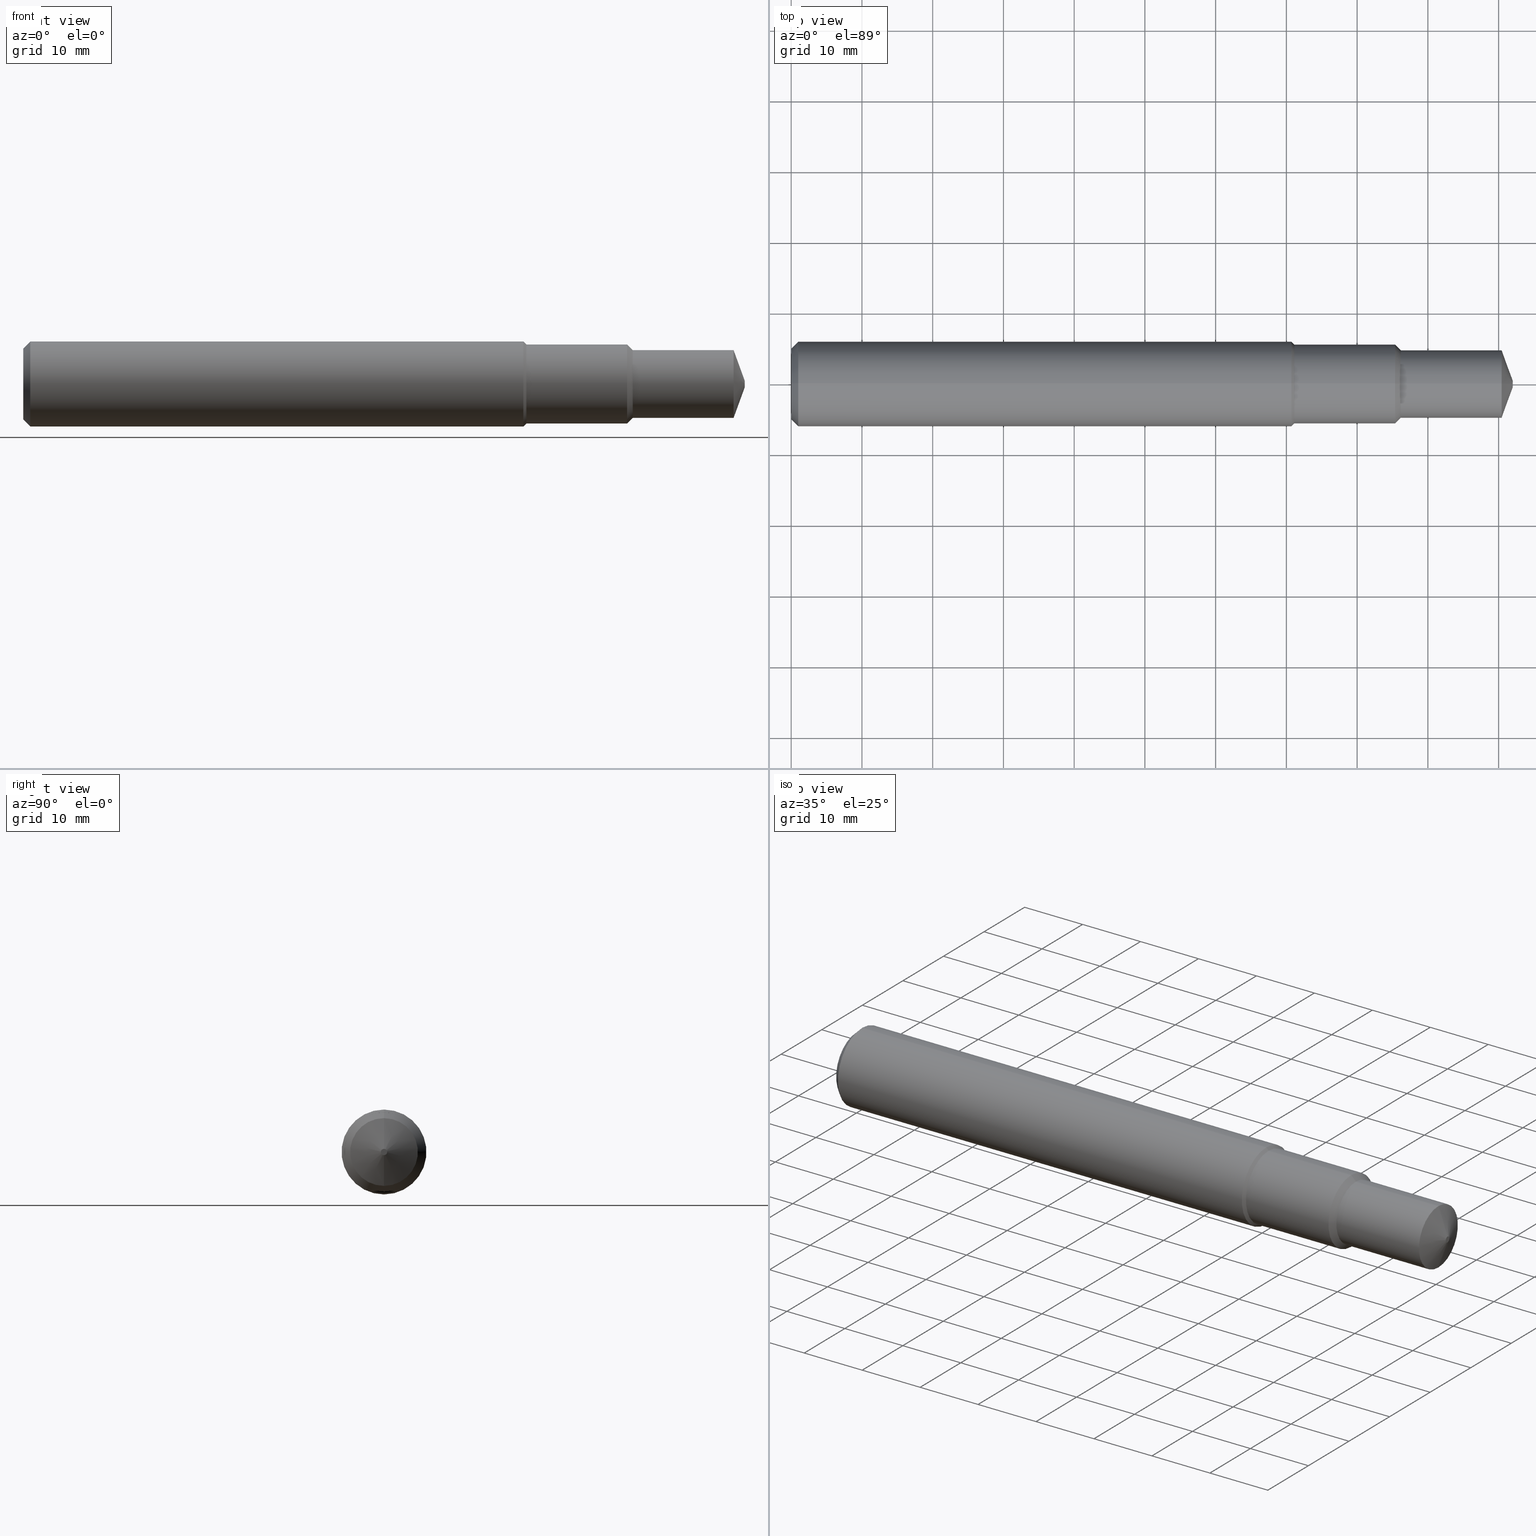
[diagram: canonical four-view strip — front | top / right | iso, engineering-drawing reading convention]
A machine part, canonical four-view strip (front | top / right | iso — engineering-drawing reading convention). The complete STEP part file that produces these views, byte-faithful:
ISO-10303-21;
HEADER;
FILE_DESCRIPTION (( 'STEP AP203' ),
    '1' );
FILE_NAME ('407040-RD-AS5202-04A.STEP',
    '2024-10-02T14:55:40',
    ( '' ),
    ( '' ),
    'SwSTEP 2.0',
    'SolidWorks 2024',
    '' );
FILE_SCHEMA (( 'CONFIG_CONTROL_DESIGN' ));
ENDSEC;

DATA;
#1 = PERSON_AND_ORGANIZATION ( #250, #100 ) ;
#2 = DIRECTION ( 'NONE',  ( 0.000000000000000000, 0.000000000000000000, -1.000000000000000000 ) ) ;
#3 = APPLICATION_PROTOCOL_DEFINITION ( 'international standard', 'config_control_design', 1994, #458 ) ;
#4 = ADVANCED_FACE ( 'NONE', ( #214 ), #179, .T. ) ;
#5 = CIRCLE ( 'NONE', #398, 0.2200000000000003897 ) ;
#6 = DIRECTION ( 'NONE',  ( -1.000000000000000000, 0.000000000000000000, 0.000000000000000000 ) ) ;
#7 = CARTESIAN_POINT ( 'NONE',  ( 4.016000000000000014, 0.000000000000000000, 0.01750000000000049780 ) ) ;
#8 = FACE_OUTER_BOUND ( 'NONE', #29, .T. ) ;
#9 = CARTESIAN_POINT ( 'NONE',  ( -0.03808593750000075634, 0.000000000000000000, -0.2200000000000003897 ) ) ;
#10 = AXIS2_PLACEMENT_3D ( 'NONE', #111, #257, #406 ) ;
#11 = AXIS2_PLACEMENT_3D ( 'NONE', #205, #328, #178 ) ;
#12 = LINE ( 'NONE', #420, #131 ) ;
#13 = DIRECTION ( 'NONE',  ( 0.000000000000000000, 0.000000000000000000, -1.000000000000000000 ) ) ;
#14 = APPROVAL ( #147, 'UNSPECIFIED' ) ;
#15 = EDGE_CURVE ( 'NONE', #319, #38, #19, .T. ) ;
#16 = CARTESIAN_POINT ( 'NONE',  ( 3.361261089940479785, 0.000000000000000000, 0.000000000000000000 ) ) ;
#17 = EDGE_CURVE ( 'NONE', #88, #38, #153, .T. ) ;
#18 = VERTEX_POINT ( 'NONE', #157 ) ;
#19 = CIRCLE ( 'NONE', #304, 0.2200000000000004174 ) ;
#20 = DIRECTION ( 'NONE',  ( 1.000000000000000000, -0.000000000000000000, -0.000000000000000000 ) ) ;
#21 = CARTESIAN_POINT ( 'NONE',  ( 3.392761089940480090, 0.000000000000000000, 0.1885000000000004172 ) ) ;
#22 = DIRECTION ( 'NONE',  ( 0.000000000000000000, 0.000000000000000000, -1.000000000000000000 ) ) ;
#23 = ORIENTED_EDGE ( 'NONE', *, *, #273, .F. ) ;
#24 = CIRCLE ( 'NONE', #268, 0.1968503937007874127 ) ;
#25 = AXIS2_PLACEMENT_3D ( 'NONE', #120, #39, #184 ) ;
#26 = AXIS2_PLACEMENT_3D ( 'NONE', #462, #130, #237 ) ;
#27 = FACE_OUTER_BOUND ( 'NONE', #478, .T. ) ;
#28 = PERSON_AND_ORGANIZATION_ROLE ( 'design_supplier' ) ;
#29 = EDGE_LOOP ( 'NONE', ( #238, #134, #437, #362 ) ) ;
#30 = FACE_OUTER_BOUND ( 'NONE', #364, .T. ) ;
#31 = ORIENTED_EDGE ( 'NONE', *, *, #292, .F. ) ;
#32 = EDGE_CURVE ( 'NONE', #438, #217, #83, .T. ) ;
#33 = CARTESIAN_POINT ( 'NONE',  ( -0.03808593750000075634, 0.000000000000000000, 0.000000000000000000 ) ) ;
#34 = ORIENTED_EDGE ( 'NONE', *, *, #52, .T. ) ;
#35 = CIRCLE ( 'NONE', #26, 0.1968503937007874127 ) ;
#36 =( LENGTH_UNIT ( ) NAMED_UNIT ( * ) SI_UNIT ( $, .METRE. ) );
#37 = APPROVAL_DATE_TIME ( #62, #317 ) ;
#38 = VERTEX_POINT ( 'NONE', #306 ) ;
#39 = DIRECTION ( 'NONE',  ( 1.000000000000000000, -0.000000000000000000, -0.000000000000000000 ) ) ;
#40 = ADVANCED_FACE ( 'NONE', ( #186 ), #229, .T. ) ;
#41 = DIRECTION ( 'NONE',  ( 0.000000000000000000, 0.000000000000000000, 1.000000000000000000 ) ) ;
#42 = PERSON_AND_ORGANIZATION ( #250, #100 ) ;
#43 = CIRCLE ( 'NONE', #196, 0.2362204724409452394 ) ;
#44 = CARTESIAN_POINT ( 'NONE',  ( 4.016000000000000014, 1.261386203121780101E-17, -0.01750000000000049780 ) ) ;
#45 = DIRECTION ( 'NONE',  ( 1.000000000000000000, -0.000000000000000000, -0.000000000000000000 ) ) ;
#46 = CARTESIAN_POINT ( 'NONE',  ( 2.800261089940479842, 0.000000000000000000, -0.2200000000000003897 ) ) ;
#47 = CARTESIAN_POINT ( 'NONE',  ( 2.800261089940479842, 0.000000000000000000, 0.2200000000000003897 ) ) ;
#48 = VECTOR ( 'NONE', #195, 39.37007874015748143 ) ;
#49 = CC_DESIGN_APPROVAL ( #182, ( #413 ) ) ;
#50 = CARTESIAN_POINT ( 'NONE',  ( -0.03808593750000075634, 0.000000000000000000, 0.000000000000000000 ) ) ;
#51 = EDGE_CURVE ( 'NONE', #386, #424, #416, .T. ) ;
#52 = EDGE_CURVE ( 'NONE', #217, #38, #110, .T. ) ;
#53 = DIRECTION ( 'NONE',  ( 0.7071067811865474617, 0.000000000000000000, -0.7071067811865474617 ) ) ;
#54 = EDGE_LOOP ( 'NONE', ( #403, #399, #311, #220 ) ) ;
#55 = DIRECTION ( 'NONE',  ( 1.000000000000000000, -0.000000000000000000, -0.000000000000000000 ) ) ;
#56 = ORIENTED_EDGE ( 'NONE', *, *, #475, .F. ) ;
#57 = LOCAL_TIME ( 7, 55, 40.00000000000000000, #365 ) ;
#58 = LINE ( 'NONE', #350, #463 ) ;
#59 = ORIENTED_EDGE ( 'NONE', *, *, #289, .T. ) ;
#60 = CARTESIAN_POINT ( 'NONE',  ( 4.016000000000000014, 0.000000000000000000, 0.000000000000000000 ) ) ;
#61 = DIRECTION ( 'NONE',  ( 0.000000000000000000, 0.000000000000000000, 1.000000000000000000 ) ) ;
#62 = DATE_AND_TIME ( #93, #57 ) ;
#63 = ORIENTED_EDGE ( 'NONE', *, *, #191, .T. ) ;
#64 = CLOSED_SHELL ( 'NONE', ( #222, #40, #445, #116, #258, #79, #359, #98, #4, #249, #378, #341, #189, #99, #360, #423 ) ) ;
#65 = MANIFOLD_SOLID_BREP ( 'Body', #64 ) ;
#66 = DIRECTION ( 'NONE',  ( 0.000000000000000000, 0.000000000000000000, -1.000000000000000000 ) ) ;
#67 = ORIENTED_EDGE ( 'NONE', *, *, #52, .F. ) ;
#68 =( CONVERSION_BASED_UNIT ( 'INCH', #101 ) LENGTH_UNIT ( ) NAMED_UNIT ( #396 ) );
#69 = ORIENTED_EDGE ( 'NONE', *, *, #152, .T. ) ;
#70 = ORIENTED_EDGE ( 'NONE', *, *, #327, .F. ) ;
#71 = AXIS2_PLACEMENT_3D ( 'NONE', #50, #199, #345 ) ;
#72 = MECHANICAL_CONTEXT ( 'NONE', #458, 'mechanical' ) ;
#73 =( GEOMETRIC_REPRESENTATION_CONTEXT ( 3 ) GLOBAL_UNCERTAINTY_ASSIGNED_CONTEXT ( ( #281 ) ) GLOBAL_UNIT_ASSIGNED_CONTEXT ( ( #68, #213, #104 ) ) REPRESENTATION_CONTEXT ( 'NONE', 'WORKASPACE' ) );
#74 = VERTEX_POINT ( 'NONE', #371 ) ;
#75 = CARTESIAN_POINT ( 'NONE',  ( 0.03937007874015747977, 2.892866454678787531E-17, 0.2362204724409449064 ) ) ;
#76 = DIRECTION ( 'NONE',  ( 1.000000000000000000, -0.000000000000000000, -0.000000000000000000 ) ) ;
#77 = VECTOR ( 'NONE', #246, 39.37007874015748143 ) ;
#78 = CARTESIAN_POINT ( 'NONE',  ( 3.361261089940479785, 0.000000000000000000, 0.000000000000000000 ) ) ;
#79 = ADVANCED_FACE ( 'NONE', ( #8 ), #150, .T. ) ;
#80 = CARTESIAN_POINT ( 'NONE',  ( 2.800261089940479842, 0.000000000000000000, 0.000000000000000000 ) ) ;
#81 = DIRECTION ( 'NONE',  ( 1.000000000000000000, -0.000000000000000000, -0.000000000000000000 ) ) ;
#82 = DIRECTION ( 'NONE',  ( 1.000000000000000000, -0.000000000000000000, -0.000000000000000000 ) ) ;
#83 = CIRCLE ( 'NONE', #202, 0.1885000000000004172 ) ;
#84 = LOCAL_TIME ( 7, 55, 40.00000000000000000, #112 ) ;
#85 = VECTOR ( 'NONE', #288, 39.37007874015748854 ) ;
#86 = EDGE_CURVE ( 'NONE', #212, #74, #337, .T. ) ;
#87 = CARTESIAN_POINT ( 'NONE',  ( 4.268512490100411279E-18, 0.000000000000000000, 0.000000000000000000 ) ) ;
#88 = VERTEX_POINT ( 'NONE', #46 ) ;
#89 = FACE_OUTER_BOUND ( 'NONE', #94, .T. ) ;
#90 = CARTESIAN_POINT ( 'NONE',  ( 0.03937007874015747977, 2.892866454678788147E-17, 0.2362204724409449064 ) ) ;
#91 = AXIS2_PLACEMENT_3D ( 'NONE', #60, #92, #61 ) ;
#92 = DIRECTION ( 'NONE',  ( -1.000000000000000000, 0.000000000000000000, 0.000000000000000000 ) ) ;
#93 = CALENDAR_DATE ( 2024, 2, 10 ) ;
#94 = EDGE_LOOP ( 'NONE', ( #351, #203, #315, #126 ) ) ;
#95 = FACE_OUTER_BOUND ( 'NONE', #367, .T. ) ;
#96 = CC_DESIGN_PERSON_AND_ORGANIZATION_ASSIGNMENT ( #379, #194, ( #271 ) ) ;
#97 = EDGE_LOOP ( 'NONE', ( #67, #235, #421, #348 ) ) ;
#98 = ADVANCED_FACE ( 'NONE', ( #115 ), #148, .T. ) ;
#99 = ADVANCED_FACE ( 'NONE', ( #444 ), #124, .T. ) ;
#100 = ORGANIZATION ( 'UNSPECIFIED', 'UNSPECIFIED', '' ) ;
#101 = LENGTH_MEASURE_WITH_UNIT ( LENGTH_MEASURE( 0.02539999999999999897 ), #36 );
#102 = CALENDAR_DATE ( 2024, 2, 10 ) ;
#103 = ORIENTED_EDGE ( 'NONE', *, *, #425, .T. ) ;
#104 =( NAMED_UNIT ( * ) SI_UNIT ( $, .STERADIAN. ) SOLID_ANGLE_UNIT ( ) );
#105 = DATE_TIME_ROLE ( 'classification_date' ) ;
#106 = ORIENTED_EDGE ( 'NONE', *, *, #51, .F. ) ;
#107 = ORIENTED_EDGE ( 'NONE', *, *, #191, .F. ) ;
#108 = CONICAL_SURFACE ( 'NONE', #231, 0.1885000000000004172, 0.7853981633974407295 ) ;
#109 = PERSON_AND_ORGANIZATION_ROLE ( 'creator' ) ;
#110 = LINE ( 'NONE', #336, #354 ) ;
#111 = CARTESIAN_POINT ( 'NONE',  ( -0.03808593750000075634, 0.000000000000000000, 0.000000000000000000 ) ) ;
#112 = COORDINATED_UNIVERSAL_TIME_OFFSET ( 8, 0, .BEHIND. ) ;
#113 = CC_DESIGN_DATE_AND_TIME_ASSIGNMENT ( #145, #105, ( #322 ) ) ;
#114 = EDGE_CURVE ( 'NONE', #18, #319, #343, .T. ) ;
#115 = FACE_OUTER_BOUND ( 'NONE', #334, .T. ) ;
#116 = ADVANCED_FACE ( 'NONE', ( #381 ), #297, .T. ) ;
#117 = DATE_AND_TIME ( #446, #464 ) ;
#118 = AXIS2_PLACEMENT_3D ( 'NONE', #314, #82, #121 ) ;
#119 = CARTESIAN_POINT ( 'NONE',  ( -0.03808593750000075634, 0.000000000000000000, 0.000000000000000000 ) ) ;
#120 = CARTESIAN_POINT ( 'NONE',  ( -0.03808593750000075634, 0.000000000000000000, 0.000000000000000000 ) ) ;
#121 = DIRECTION ( 'NONE',  ( 0.000000000000000000, 0.000000000000000000, -1.000000000000000000 ) ) ;
#122 = ORIENTED_EDGE ( 'NONE', *, *, #32, .T. ) ;
#123 = LINE ( 'NONE', #21, #457 ) ;
#124 = CONICAL_SURFACE ( 'NONE', #149, 0.2200000000000003897, 0.7853981633974524978 ) ;
#125 = CC_DESIGN_APPROVAL ( #317, ( #322 ) ) ;
#126 = ORIENTED_EDGE ( 'NONE', *, *, #15, .F. ) ;
#127 = PRODUCT_DEFINITION_SHAPE ( 'NONE', 'NONE',  #187 ) ;
#128 = CARTESIAN_POINT ( 'NONE',  ( 3.953761089940480034, 0.000000000000000000, 0.000000000000000000 ) ) ;
#129 = DIRECTION ( 'NONE',  ( 1.000000000000000000, -0.000000000000000000, -0.000000000000000000 ) ) ;
#130 = DIRECTION ( 'NONE',  ( 1.000000000000000000, -0.000000000000000000, -0.000000000000000000 ) ) ;
#131 = VECTOR ( 'NONE', #129, 39.37007874015748143 ) ;
#132 = APPROVAL_PERSON_ORGANIZATION ( #1, #14, #154 ) ;
#133 = CARTESIAN_POINT ( 'NONE',  ( 4.016000000000000014, 0.000000000000000000, 0.000000000000000000 ) ) ;
#134 = ORIENTED_EDGE ( 'NONE', *, *, #443, .T. ) ;
#135 = FACE_OUTER_BOUND ( 'NONE', #54, .T. ) ;
#136 = EDGE_LOOP ( 'NONE', ( #293, #326, #248, #63 ) ) ;
#137 = EDGE_CURVE ( 'NONE', #295, #278, #449, .T. ) ;
#138 = DIRECTION ( 'NONE',  ( 0.000000000000000000, 0.000000000000000000, 1.000000000000000000 ) ) ;
#139 = ORIENTED_EDGE ( 'NONE', *, *, #200, .F. ) ;
#140 = CIRCLE ( 'NONE', #418, 0.2200000000000003897 ) ;
#141 = AXIS2_PLACEMENT_3D ( 'NONE', #133, #431, #66 ) ;
#142 = PERSON_AND_ORGANIZATION_ROLE ( 'creator' ) ;
#143 = DIRECTION ( 'NONE',  ( 1.000000000000000000, 0.000000000000000000, -0.000000000000000000 ) ) ;
#144 = CARTESIAN_POINT ( 'NONE',  ( 0.03937007874015747977, 0.000000000000000000, 0.000000000000000000 ) ) ;
#145 = DATE_AND_TIME ( #102, #383 ) ;
#146 = ORIENTED_EDGE ( 'NONE', *, *, #310, .F. ) ;
#147 = APPROVAL_STATUS ( 'not_yet_approved' ) ;
#148 = PLANE ( 'NONE',  #218 ) ;
#149 = AXIS2_PLACEMENT_3D ( 'NONE', #227, #259, #447 ) ;
#150 = CYLINDRICAL_SURFACE ( 'NONE', #298, 0.1885000000000004727 ) ;
#151 = CC_DESIGN_DATE_AND_TIME_ASSIGNMENT ( #410, #224, ( #187 ) ) ;
#152 = EDGE_CURVE ( 'NONE', #167, #386, #473, .T. ) ;
#153 = LINE ( 'NONE', #9, #48 ) ;
#154 = APPROVAL_ROLE ( '' ) ;
#155 = DIRECTION ( 'NONE',  ( -0.3420201433256661039, 0.000000000000000000, 0.9396926207859094271 ) ) ;
#156 = AXIS2_PLACEMENT_3D ( 'NONE', #144, #173, #397 ) ;
#157 = CARTESIAN_POINT ( 'NONE',  ( 2.800261089940479842, 2.694222958124181567E-17, 0.2200000000000003897 ) ) ;
#158 = CARTESIAN_POINT ( 'NONE',  ( 3.392761089940480090, 0.000000000000000000, 0.000000000000000000 ) ) ;
#159 = CARTESIAN_POINT ( 'NONE',  ( 4.016000000000000014, 0.000000000000000000, 0.000000000000000000 ) ) ;
#160 = ORIENTED_EDGE ( 'NONE', *, *, #137, .F. ) ;
#161 = DIRECTION ( 'NONE',  ( 1.000000000000000000, -0.000000000000000000, -0.000000000000000000 ) ) ;
#162 = AXIS2_PLACEMENT_3D ( 'NONE', #16, #168, #347 ) ;
#163 = LOCAL_TIME ( 7, 55, 40.00000000000000000, #448 ) ;
#164 = ORIENTED_EDGE ( 'NONE', *, *, #165, .T. ) ;
#165 = EDGE_CURVE ( 'NONE', #88, #18, #140, .T. ) ;
#166 = DIRECTION ( 'NONE',  ( -0.7071067811865529018, 0.000000000000000000, 0.7071067811865421326 ) ) ;
#167 = VERTEX_POINT ( 'NONE', #44 ) ;
#168 = DIRECTION ( 'NONE',  ( 1.000000000000000000, -0.000000000000000000, -0.000000000000000000 ) ) ;
#169 = CARTESIAN_POINT ( 'NONE',  ( -0.03808593750000075634, 2.308459216392766469E-17, 0.1885000000000004727 ) ) ;
#170 = ORIENTED_EDGE ( 'NONE', *, *, #407, .T. ) ;
#171 = AXIS2_PLACEMENT_3D ( 'NONE', #261, #408, #264 ) ;
#172 = EDGE_CURVE ( 'NONE', #217, #468, #192, .T. ) ;
#173 = DIRECTION ( 'NONE',  ( 1.000000000000000000, -0.000000000000000000, -0.000000000000000000 ) ) ;
#174 = ORIENTED_EDGE ( 'NONE', *, *, #86, .T. ) ;
#175 = DIRECTION ( 'NONE',  ( 1.000000000000000000, -0.000000000000000000, -0.000000000000000000 ) ) ;
#176 = PERSON_AND_ORGANIZATION ( #250, #100 ) ;
#177 = VERTEX_POINT ( 'NONE', #380 ) ;
#178 = DIRECTION ( 'NONE',  ( 0.000000000000000000, 0.000000000000000000, -1.000000000000000000 ) ) ;
#179 = PLANE ( 'NONE',  #290 ) ;
#180 = CIRCLE ( 'NONE', #450, 0.2362204724409449064 ) ;
#181 = AXIS2_PLACEMENT_3D ( 'NONE', #33, #465, #242 ) ;
#182 = APPROVAL ( #260, 'UNSPECIFIED' ) ;
#183 = EDGE_LOOP ( 'NONE', ( #388, #34, #255, #209 ) ) ;
#184 = DIRECTION ( 'NONE',  ( 0.000000000000000000, 0.000000000000000000, -1.000000000000000000 ) ) ;
#185 = DIRECTION ( 'NONE',  ( 1.000000000000000000, 0.000000000000000000, 0.000000000000000000 ) ) ;
#186 = FACE_OUTER_BOUND ( 'NONE', #357, .T. ) ;
#187 = PRODUCT_DEFINITION ( 'UNKNOWN', '', #413, #287 ) ;
#188 = AXIS2_PLACEMENT_3D ( 'NONE', #427, #20, #390 ) ;
#189 = ADVANCED_FACE ( 'NONE', ( #89 ), #428, .T. ) ;
#190 = VECTOR ( 'NONE', #197, 39.37007874015748854 ) ;
#191 = EDGE_CURVE ( 'NONE', #424, #468, #344, .T. ) ;
#192 = LINE ( 'NONE', #193, #433 ) ;
#193 = CARTESIAN_POINT ( 'NONE',  ( -0.03808593750000075634, 0.000000000000000000, -0.1885000000000004727 ) ) ;
#194 = PERSON_AND_ORGANIZATION_ROLE ( 'design_owner' ) ;
#195 = DIRECTION ( 'NONE',  ( 1.000000000000000000, -0.000000000000000000, -0.000000000000000000 ) ) ;
#196 = AXIS2_PLACEMENT_3D ( 'NONE', #232, #453, #13 ) ;
#197 = DIRECTION ( 'NONE',  ( -0.7071067811865444641, 0.000000000000000000, 0.7071067811865503483 ) ) ;
#198 = FACE_OUTER_BOUND ( 'NONE', #283, .T. ) ;
#199 = DIRECTION ( 'NONE',  ( 1.000000000000000000, -0.000000000000000000, -0.000000000000000000 ) ) ;
#200 = EDGE_CURVE ( 'NONE', #177, #74, #12, .T. ) ;
#201 = DIRECTION ( 'NONE',  ( 1.000000000000000000, -0.000000000000000000, -0.000000000000000000 ) ) ;
#202 = AXIS2_PLACEMENT_3D ( 'NONE', #452, #81, #415 ) ;
#203 = ORIENTED_EDGE ( 'NONE', *, *, #409, .T. ) ;
#204 = CARTESIAN_POINT ( 'NONE',  ( 0.03937007874015747977, 0.000000000000000000, 0.000000000000000000 ) ) ;
#205 = CARTESIAN_POINT ( 'NONE',  ( -0.03808593750000075634, 0.000000000000000000, 0.000000000000000000 ) ) ;
#206 = ORIENTED_EDGE ( 'NONE', *, *, #270, .F. ) ;
#207 = CARTESIAN_POINT ( 'NONE',  ( 3.392761089940480090, 0.000000000000000000, 0.000000000000000000 ) ) ;
#208 = AXIS2_PLACEMENT_3D ( 'NONE', #128, #161, #346 ) ;
#209 = ORIENTED_EDGE ( 'NONE', *, *, #275, .F. ) ;
#210 = CONICAL_SURFACE ( 'NONE', #305, 0.1885000000000004172, 0.7853981633974407295 ) ;
#211 = CARTESIAN_POINT ( 'NONE',  ( 2.800261089940479842, 0.000000000000000000, 0.000000000000000000 ) ) ;
#212 = VERTEX_POINT ( 'NONE', #272 ) ;
#213 =( NAMED_UNIT ( * ) PLANE_ANGLE_UNIT ( ) SI_UNIT ( $, .RADIAN. ) );
#214 = FACE_OUTER_BOUND ( 'NONE', #401, .T. ) ;
#215 = CARTESIAN_POINT ( 'NONE',  ( 3.392761089940480090, 2.308459216392766161E-17, 0.1885000000000004172 ) ) ;
#216 = APPROVAL_ROLE ( '' ) ;
#217 = VERTEX_POINT ( 'NONE', #387 ) ;
#218 = AXIS2_PLACEMENT_3D ( 'NONE', #373, #6, #41 ) ;
#219 = AXIS2_PLACEMENT_3D ( 'NONE', #372, #254, #185 ) ;
#220 = ORIENTED_EDGE ( 'NONE', *, *, #340, .F. ) ;
#221 = DIRECTION ( 'NONE',  ( 0.7071067811865474617, 8.659560562354932858E-17, 0.7071067811865474617 ) ) ;
#222 = ADVANCED_FACE ( 'NONE', ( #198 ), #440, .T. ) ;
#223 = EDGE_CURVE ( 'NONE', #74, #212, #43, .T. ) ;
#224 = DATE_TIME_ROLE ( 'creation_date' ) ;
#225 = DIRECTION ( 'NONE',  ( 0.000000000000000000, 0.000000000000000000, -1.000000000000000000 ) ) ;
#226 = APPROVAL_ROLE ( '' ) ;
#227 = CARTESIAN_POINT ( 'NONE',  ( 2.800261089940479842, 0.000000000000000000, 0.000000000000000000 ) ) ;
#228 = DATE_AND_TIME ( #263, #163 ) ;
#229 = CYLINDRICAL_SURFACE ( 'NONE', #25, 0.2362204724409450729 ) ;
#230 = CARTESIAN_POINT ( 'NONE',  ( 0.03937007874015747977, 0.000000000000000000, -0.2362204724409449064 ) ) ;
#231 = AXIS2_PLACEMENT_3D ( 'NONE', #158, #459, #460 ) ;
#232 = CARTESIAN_POINT ( 'NONE',  ( 2.784040617499535131, 0.000000000000000000, 0.000000000000000000 ) ) ;
#233 = LINE ( 'NONE', #307, #244 ) ;
#234 = EDGE_CURVE ( 'NONE', #471, #177, #455, .T. ) ;
#235 = ORIENTED_EDGE ( 'NONE', *, *, #32, .F. ) ;
#236 = EDGE_CURVE ( 'NONE', #278, #212, #58, .T. ) ;
#237 = DIRECTION ( 'NONE',  ( 0.000000000000000000, 0.000000000000000000, -1.000000000000000000 ) ) ;
#238 = ORIENTED_EDGE ( 'NONE', *, *, #296, .T. ) ;
#239 = CARTESIAN_POINT ( 'NONE',  ( 4.268512490100411279E-18, 2.651794250122221800E-17, 0.1968503937007874127 ) ) ;
#240 = AXIS2_PLACEMENT_3D ( 'NONE', #159, #352, #309 ) ;
#241 = EDGE_LOOP ( 'NONE', ( #56, #466, #430, #174 ) ) ;
#242 = DIRECTION ( 'NONE',  ( 0.000000000000000000, 0.000000000000000000, -1.000000000000000000 ) ) ;
#243 = ORIENTED_EDGE ( 'NONE', *, *, #137, .T. ) ;
#244 = VECTOR ( 'NONE', #385, 39.37007874015748854 ) ;
#245 = ORIENTED_EDGE ( 'NONE', *, *, #443, .F. ) ;
#246 = DIRECTION ( 'NONE',  ( 1.000000000000000000, -0.000000000000000000, -0.000000000000000000 ) ) ;
#247 = CC_DESIGN_PERSON_AND_ORGANIZATION_ASSIGNMENT ( #176, #28, ( #413 ) ) ;
#248 = ORIENTED_EDGE ( 'NONE', *, *, #51, .T. ) ;
#249 = ADVANCED_FACE ( 'NONE', ( #277 ), #321, .T. ) ;
#250 = PERSON ( 'UNSPECIFIED', 'UNSPECIFIED', 'UNSPECIFIED', ('UNSPECIFIED'), ('UNSPECIFIED'), ('UNSPECIFIED') ) ;
#251 = CYLINDRICAL_SURFACE ( 'NONE', #11, 0.1885000000000004727 ) ;
#252 = PERSON_AND_ORGANIZATION_ROLE ( 'classification_officer' ) ;
#253 = ORIENTED_EDGE ( 'NONE', *, *, #236, .F. ) ;
#254 = DIRECTION ( 'NONE',  ( 0.000000000000000000, 0.000000000000000000, 1.000000000000000000 ) ) ;
#255 = ORIENTED_EDGE ( 'NONE', *, *, #292, .T. ) ;
#256 = APPROVAL_PERSON_ORGANIZATION ( #42, #182, #226 ) ;
#257 = DIRECTION ( 'NONE',  ( 1.000000000000000000, -0.000000000000000000, -0.000000000000000000 ) ) ;
#258 = ADVANCED_FACE ( 'NONE', ( #384 ), #108, .T. ) ;
#259 = DIRECTION ( 'NONE',  ( -1.000000000000000000, 0.000000000000000000, 0.000000000000000000 ) ) ;
#260 = APPROVAL_STATUS ( 'not_yet_approved' ) ;
#261 = CARTESIAN_POINT ( 'NONE',  ( 4.016000000000000014, 0.000000000000000000, 0.000000000000000000 ) ) ;
#262 = AXIS2_PLACEMENT_3D ( 'NONE', #382, #266, #313 ) ;
#263 = CALENDAR_DATE ( 2024, 2, 10 ) ;
#264 = DIRECTION ( 'NONE',  ( 0.000000000000000000, 0.000000000000000000, -1.000000000000000000 ) ) ;
#265 = DIRECTION ( 'NONE',  ( 1.000000000000000000, -0.000000000000000000, -0.000000000000000000 ) ) ;
#266 = DIRECTION ( 'NONE',  ( 1.000000000000000000, -0.000000000000000000, -0.000000000000000000 ) ) ;
#267 = ORIENTED_EDGE ( 'NONE', *, *, #172, .T. ) ;
#268 = AXIS2_PLACEMENT_3D ( 'NONE', #87, #201, #417 ) ;
#269 = AXIS2_PLACEMENT_3D ( 'NONE', #330, #175, #467 ) ;
#270 = EDGE_CURVE ( 'NONE', #471, #295, #24, .T. ) ;
#271 = PRODUCT ( '407040-RD-AS5202-04A', '407040-RD-AS5202-04A', '', ( #72 ) ) ;
#272 = CARTESIAN_POINT ( 'NONE',  ( 2.784040617499535131, 0.000000000000000000, 0.2362204724409452394 ) ) ;
#273 = EDGE_CURVE ( 'NONE', #278, #177, #395, .T. ) ;
#274 = ORIENTED_EDGE ( 'NONE', *, *, #152, .F. ) ;
#275 = EDGE_CURVE ( 'NONE', #438, #319, #123, .T. ) ;
#276 = DIRECTION ( 'NONE',  ( 0.000000000000000000, 0.000000000000000000, -1.000000000000000000 ) ) ;
#277 = FACE_OUTER_BOUND ( 'NONE', #136, .T. ) ;
#278 = VERTEX_POINT ( 'NONE', #90 ) ;
#279 = LINE ( 'NONE', #47, #190 ) ;
#280 = VECTOR ( 'NONE', #45, 39.37007874015748143 ) ;
#281 = UNCERTAINTY_MEASURE_WITH_UNIT (LENGTH_MEASURE( 1.000000000000000082E-05 ), #68, 'distance_accuracy_value', 'NONE');
#282 = CARTESIAN_POINT ( 'NONE',  ( 3.953761089940480034, 0.000000000000000000, 0.1885000000000005560 ) ) ;
#283 = EDGE_LOOP ( 'NONE', ( #404, #243, #146, #308 ) ) ;
#284 = LINE ( 'NONE', #294, #85 ) ;
#285 = PERSON_AND_ORGANIZATION ( #250, #100 ) ;
#286 = ORIENTED_EDGE ( 'NONE', *, *, #86, .F. ) ;
#287 = DESIGN_CONTEXT ( 'detailed design', #316, 'design' ) ;
#288 = DIRECTION ( 'NONE',  ( -0.7071067811865444641, 8.659560562354967371E-17, -0.7071067811865503483 ) ) ;
#289 = EDGE_CURVE ( 'NONE', #167, #468, #233, .T. ) ;
#290 = AXIS2_PLACEMENT_3D ( 'NONE', #476, #143, #342 ) ;
#291 = ORIENTED_EDGE ( 'NONE', *, *, #114, .T. ) ;
#292 = EDGE_CURVE ( 'NONE', #38, #319, #376, .T. ) ;
#293 = ORIENTED_EDGE ( 'NONE', *, *, #289, .F. ) ;
#294 = CARTESIAN_POINT ( 'NONE',  ( 2.800261089940479842, 2.694222958124181567E-17, -0.2200000000000003897 ) ) ;
#295 = VERTEX_POINT ( 'NONE', #239 ) ;
#296 = EDGE_CURVE ( 'NONE', #217, #438, #389, .T. ) ;
#297 = CYLINDRICAL_SURFACE ( 'NONE', #10, 0.2200000000000003897 ) ;
#298 = AXIS2_PLACEMENT_3D ( 'NONE', #119, #335, #2 ) ;
#299 = CC_DESIGN_SECURITY_CLASSIFICATION ( #322, ( #413 ) ) ;
#300 = DIRECTION ( 'NONE',  ( 0.000000000000000000, 0.000000000000000000, -1.000000000000000000 ) ) ;
#301 = CARTESIAN_POINT ( 'NONE',  ( 2.784040617499535131, 0.000000000000000000, 0.000000000000000000 ) ) ;
#302 = PRODUCT_RELATED_PRODUCT_CATEGORY ( 'detail', '', ( #271 ) ) ;
#303 = CARTESIAN_POINT ( 'NONE',  ( -0.03808593750000075634, 2.694222958124181567E-17, 0.2200000000000003897 ) ) ;
#304 = AXIS2_PLACEMENT_3D ( 'NONE', #78, #441, #225 ) ;
#305 = AXIS2_PLACEMENT_3D ( 'NONE', #207, #477, #355 ) ;
#306 = CARTESIAN_POINT ( 'NONE',  ( 3.361261089940479785, 2.694222958124182492E-17, -0.2200000000000004174 ) ) ;
#307 = CARTESIAN_POINT ( 'NONE',  ( 4.016000000000000014, 2.143131898507929234E-18, -0.01750000000000049780 ) ) ;
#308 = ORIENTED_EDGE ( 'NONE', *, *, #234, .F. ) ;
#309 = DIRECTION ( 'NONE',  ( 0.000000000000000000, 0.000000000000000000, 1.000000000000000000 ) ) ;
#310 = EDGE_CURVE ( 'NONE', #177, #278, #180, .T. ) ;
#311 = ORIENTED_EDGE ( 'NONE', *, *, #223, .T. ) ;
#312 = CONICAL_SURFACE ( 'NONE', #91, 0.01750000000000049780, 1.221730476396033493 ) ;
#313 = DIRECTION ( 'NONE',  ( 0.000000000000000000, 0.000000000000000000, -1.000000000000000000 ) ) ;
#314 = CARTESIAN_POINT ( 'NONE',  ( 0.03937007874015747977, 0.000000000000000000, 0.000000000000000000 ) ) ;
#315 = ORIENTED_EDGE ( 'NONE', *, *, #17, .T. ) ;
#316 = APPLICATION_CONTEXT ( 'configuration controlled 3d designs of mechanical parts and assemblies' ) ;
#317 = APPROVAL ( #370, 'UNSPECIFIED' ) ;
#318 = DIRECTION ( 'NONE',  ( 1.000000000000000000, -0.000000000000000000, -0.000000000000000000 ) ) ;
#319 = VERTEX_POINT ( 'NONE', #422 ) ;
#320 = FACE_OUTER_BOUND ( 'NONE', #323, .T. ) ;
#321 = CONICAL_SURFACE ( 'NONE', #240, 0.01750000000000049780, 1.221730476396033493 ) ;
#322 = SECURITY_CLASSIFICATION ( '', '', #325 ) ;
#323 = EDGE_LOOP ( 'NONE', ( #274, #59, #103, #106 ) ) ;
#324 = DIRECTION ( 'NONE',  ( 1.000000000000000000, -0.000000000000000000, -0.000000000000000000 ) ) ;
#325 = SECURITY_CLASSIFICATION_LEVEL ( 'unclassified' ) ;
#326 = ORIENTED_EDGE ( 'NONE', *, *, #407, .F. ) ;
#327 = EDGE_CURVE ( 'NONE', #295, #471, #35, .T. ) ;
#328 = DIRECTION ( 'NONE',  ( 1.000000000000000000, -0.000000000000000000, -0.000000000000000000 ) ) ;
#329 = ORIENTED_EDGE ( 'NONE', *, *, #327, .T. ) ;
#330 = CARTESIAN_POINT ( 'NONE',  ( 3.953761089940480034, 0.000000000000000000, 0.000000000000000000 ) ) ;
#331 = VECTOR ( 'NONE', #155, 39.37007874015748854 ) ;
#332 = ORIENTED_EDGE ( 'NONE', *, *, #234, .T. ) ;
#333 = SHAPE_DEFINITION_REPRESENTATION ( #127, #426 ) ;
#334 = EDGE_LOOP ( 'NONE', ( #206, #70 ) ) ;
#335 = DIRECTION ( 'NONE',  ( 1.000000000000000000, -0.000000000000000000, -0.000000000000000000 ) ) ;
#336 = CARTESIAN_POINT ( 'NONE',  ( 3.392761089940480090, 2.308459216392766161E-17, -0.1885000000000004172 ) ) ;
#337 = CIRCLE ( 'NONE', #366, 0.2362204724409452394 ) ;
#338 = DIRECTION ( 'NONE',  ( -0.7071067811865529018, 8.659560562354867531E-17, -0.7071067811865421326 ) ) ;
#339 = CC_DESIGN_PERSON_AND_ORGANIZATION_ASSIGNMENT ( #285, #252, ( #322 ) ) ;
#340 = EDGE_CURVE ( 'NONE', #18, #212, #279, .T. ) ;
#341 = ADVANCED_FACE ( 'NONE', ( #353 ), #210, .T. ) ;
#342 = DIRECTION ( 'NONE',  ( -0.000000000000000000, 0.000000000000000000, -1.000000000000000000 ) ) ;
#343 = LINE ( 'NONE', #303, #280 ) ;
#344 = CIRCLE ( 'NONE', #208, 0.1885000000000005282 ) ;
#345 = DIRECTION ( 'NONE',  ( 0.000000000000000000, 0.000000000000000000, -1.000000000000000000 ) ) ;
#346 = DIRECTION ( 'NONE',  ( 0.000000000000000000, 0.000000000000000000, -1.000000000000000000 ) ) ;
#347 = DIRECTION ( 'NONE',  ( 0.000000000000000000, 0.000000000000000000, -1.000000000000000000 ) ) ;
#348 = ORIENTED_EDGE ( 'NONE', *, *, #15, .T. ) ;
#349 = VECTOR ( 'NONE', #221, 39.37007874015748854 ) ;
#350 = CARTESIAN_POINT ( 'NONE',  ( -0.03808593750000075634, 2.892866454678789379E-17, 0.2362204724409450729 ) ) ;
#351 = ORIENTED_EDGE ( 'NONE', *, *, #114, .F. ) ;
#352 = DIRECTION ( 'NONE',  ( -1.000000000000000000, 0.000000000000000000, 0.000000000000000000 ) ) ;
#353 = FACE_OUTER_BOUND ( 'NONE', #97, .T. ) ;
#354 = VECTOR ( 'NONE', #338, 39.37007874015748143 ) ;
#355 = DIRECTION ( 'NONE',  ( 0.000000000000000000, 0.000000000000000000, 1.000000000000000000 ) ) ;
#356 = CIRCLE ( 'NONE', #141, 0.01750000000000049780 ) ;
#357 = EDGE_LOOP ( 'NONE', ( #461, #456, #394, #139 ) ) ;
#358 = CC_DESIGN_PERSON_AND_ORGANIZATION_ASSIGNMENT ( #374, #109, ( #187 ) ) ;
#359 = ADVANCED_FACE ( 'NONE', ( #320 ), #312, .T. ) ;
#360 = ADVANCED_FACE ( 'NONE', ( #27 ), #392, .T. ) ;
#361 = CARTESIAN_POINT ( 'NONE',  ( 4.016000000000000014, 0.000000000000000000, 0.01750000000000049780 ) ) ;
#362 = ORIENTED_EDGE ( 'NONE', *, *, #172, .F. ) ;
#363 = CARTESIAN_POINT ( 'NONE',  ( 4.268512490100411279E-18, 0.000000000000000000, -0.1968503937007874127 ) ) ;
#364 = EDGE_LOOP ( 'NONE', ( #245, #122, #267, #107 ) ) ;
#365 = COORDINATED_UNIVERSAL_TIME_OFFSET ( 8, 0, .BEHIND. ) ;
#366 = AXIS2_PLACEMENT_3D ( 'NONE', #301, #265, #300 ) ;
#367 = EDGE_LOOP ( 'NONE', ( #160, #329, #332, #23 ) ) ;
#368 = AXIS2_PLACEMENT_3D ( 'NONE', #402, #469, #138 ) ;
#369 = APPLICATION_PROTOCOL_DEFINITION ( 'international standard', 'config_control_design', 1994, #316 ) ;
#370 = APPROVAL_STATUS ( 'not_yet_approved' ) ;
#371 = CARTESIAN_POINT ( 'NONE',  ( 2.784040617499535131, 2.892866454678791228E-17, -0.2362204724409452394 ) ) ;
#372 = CARTESIAN_POINT ( 'NONE',  ( 0.000000000000000000, 0.000000000000000000, 0.000000000000000000 ) ) ;
#373 = CARTESIAN_POINT ( 'NONE',  ( 1.186075246418302955E-18, 0.1968503937007874127, 0.000000000000000000 ) ) ;
#374 = PERSON_AND_ORGANIZATION ( #250, #100 ) ;
#375 = DIRECTION ( 'NONE',  ( 0.000000000000000000, 0.000000000000000000, -1.000000000000000000 ) ) ;
#376 = CIRCLE ( 'NONE', #162, 0.2200000000000004174 ) ;
#377 = CONICAL_SURFACE ( 'NONE', #156, 0.2362204724409449064, 0.7853981633974482790 ) ;
#378 = ADVANCED_FACE ( 'NONE', ( #30 ), #251, .T. ) ;
#379 = PERSON_AND_ORGANIZATION ( #250, #100 ) ;
#380 = CARTESIAN_POINT ( 'NONE',  ( 0.03937007874015747977, 0.000000000000000000, -0.2362204724409449064 ) ) ;
#381 = FACE_OUTER_BOUND ( 'NONE', #454, .T. ) ;
#382 = CARTESIAN_POINT ( 'NONE',  ( 3.392761089940480090, 0.000000000000000000, 0.000000000000000000 ) ) ;
#383 = LOCAL_TIME ( 7, 55, 40.00000000000000000, #470 ) ;
#384 = FACE_OUTER_BOUND ( 'NONE', #183, .T. ) ;
#385 = DIRECTION ( 'NONE',  ( -0.3420201433256661039, 1.150791560227851502E-16, -0.9396926207859094271 ) ) ;
#386 = VERTEX_POINT ( 'NONE', #361 ) ;
#387 = CARTESIAN_POINT ( 'NONE',  ( 3.392761089940480090, 0.000000000000000000, -0.1885000000000004172 ) ) ;
#388 = ORIENTED_EDGE ( 'NONE', *, *, #296, .F. ) ;
#389 = CIRCLE ( 'NONE', #262, 0.1885000000000004172 ) ;
#390 = DIRECTION ( 'NONE',  ( 0.000000000000000000, 0.000000000000000000, -1.000000000000000000 ) ) ;
#391 = ORIENTED_EDGE ( 'NONE', *, *, #273, .T. ) ;
#392 = CYLINDRICAL_SURFACE ( 'NONE', #181, 0.2362204724409450729 ) ;
#393 = APPROVAL_DATE_TIME ( #228, #182 ) ;
#394 = ORIENTED_EDGE ( 'NONE', *, *, #223, .F. ) ;
#395 = CIRCLE ( 'NONE', #188, 0.2362204724409449064 ) ;
#396 = DIMENSIONAL_EXPONENTS ( 1.000000000000000000, 0.000000000000000000, 0.000000000000000000, 0.000000000000000000, 0.000000000000000000, 0.000000000000000000, 0.000000000000000000 ) ;
#397 = DIRECTION ( 'NONE',  ( 0.000000000000000000, 0.000000000000000000, -1.000000000000000000 ) ) ;
#398 = AXIS2_PLACEMENT_3D ( 'NONE', #211, #324, #22 ) ;
#399 = ORIENTED_EDGE ( 'NONE', *, *, #475, .T. ) ;
#400 = CARTESIAN_POINT ( 'NONE',  ( 3.953761089940480034, 2.308459216392768010E-17, -0.1885000000000005560 ) ) ;
#401 = EDGE_LOOP ( 'NONE', ( #170, #69 ) ) ;
#402 = CARTESIAN_POINT ( 'NONE',  ( 2.800261089940479842, 0.000000000000000000, 0.000000000000000000 ) ) ;
#403 = ORIENTED_EDGE ( 'NONE', *, *, #165, .F. ) ;
#404 = ORIENTED_EDGE ( 'NONE', *, *, #270, .T. ) ;
#405 = CONICAL_SURFACE ( 'NONE', #368, 0.2200000000000003897, 0.7853981633974524978 ) ;
#406 = DIRECTION ( 'NONE',  ( 0.000000000000000000, 0.000000000000000000, -1.000000000000000000 ) ) ;
#407 = EDGE_CURVE ( 'NONE', #386, #167, #356, .T. ) ;
#408 = DIRECTION ( 'NONE',  ( 1.000000000000000000, -0.000000000000000000, -0.000000000000000000 ) ) ;
#409 = EDGE_CURVE ( 'NONE', #18, #88, #5, .T. ) ;
#410 = DATE_AND_TIME ( #442, #84 ) ;
#411 = DIRECTION ( 'NONE',  ( 1.000000000000000000, -0.000000000000000000, -0.000000000000000000 ) ) ;
#412 = VECTOR ( 'NONE', #53, 39.37007874015748854 ) ;
#413 = PRODUCT_DEFINITION_FORMATION_WITH_SPECIFIED_SOURCE ( 'ANY', '', #271, .NOT_KNOWN. ) ;
#414 = COORDINATED_UNIVERSAL_TIME_OFFSET ( 8, 0, .BEHIND. ) ;
#415 = DIRECTION ( 'NONE',  ( 0.000000000000000000, 0.000000000000000000, -1.000000000000000000 ) ) ;
#416 = LINE ( 'NONE', #7, #331 ) ;
#417 = DIRECTION ( 'NONE',  ( 0.000000000000000000, 0.000000000000000000, -1.000000000000000000 ) ) ;
#418 = AXIS2_PLACEMENT_3D ( 'NONE', #80, #76, #375 ) ;
#419 = CIRCLE ( 'NONE', #269, 0.1885000000000005282 ) ;
#420 = CARTESIAN_POINT ( 'NONE',  ( -0.03808593750000075634, 0.000000000000000000, -0.2362204724409450729 ) ) ;
#421 = ORIENTED_EDGE ( 'NONE', *, *, #275, .T. ) ;
#422 = CARTESIAN_POINT ( 'NONE',  ( 3.361261089940479785, 0.000000000000000000, 0.2200000000000004174 ) ) ;
#423 = ADVANCED_FACE ( 'NONE', ( #95 ), #377, .T. ) ;
#424 = VERTEX_POINT ( 'NONE', #282 ) ;
#425 = EDGE_CURVE ( 'NONE', #468, #424, #419, .T. ) ;
#426 = ADVANCED_BREP_SHAPE_REPRESENTATION ( '407040-RD-AS5202-04A', ( #65, #219 ), #73 ) ;
#427 = CARTESIAN_POINT ( 'NONE',  ( 0.03937007874015747977, 0.000000000000000000, 0.000000000000000000 ) ) ;
#428 = CYLINDRICAL_SURFACE ( 'NONE', #71, 0.2200000000000003897 ) ;
#429 = PERSON_AND_ORGANIZATION ( #250, #100 ) ;
#430 = ORIENTED_EDGE ( 'NONE', *, *, #340, .T. ) ;
#431 = DIRECTION ( 'NONE',  ( 1.000000000000000000, -0.000000000000000000, -0.000000000000000000 ) ) ;
#432 = ORIENTED_EDGE ( 'NONE', *, *, #200, .T. ) ;
#433 = VECTOR ( 'NONE', #411, 39.37007874015748143 ) ;
#434 = APPROVAL_PERSON_ORGANIZATION ( #436, #317, #216 ) ;
#435 = ORIENTED_EDGE ( 'NONE', *, *, #17, .F. ) ;
#436 = PERSON_AND_ORGANIZATION ( #250, #100 ) ;
#437 = ORIENTED_EDGE ( 'NONE', *, *, #425, .F. ) ;
#438 = VERTEX_POINT ( 'NONE', #215 ) ;
#439 = APPROVAL_DATE_TIME ( #117, #14 ) ;
#440 = CONICAL_SURFACE ( 'NONE', #118, 0.2362204724409449064, 0.7853981633974482790 ) ;
#441 = DIRECTION ( 'NONE',  ( 1.000000000000000000, -0.000000000000000000, -0.000000000000000000 ) ) ;
#442 = CALENDAR_DATE ( 2024, 2, 10 ) ;
#443 = EDGE_CURVE ( 'NONE', #438, #424, #474, .T. ) ;
#444 = FACE_OUTER_BOUND ( 'NONE', #241, .T. ) ;
#445 = ADVANCED_FACE ( 'NONE', ( #135 ), #405, .T. ) ;
#446 = CALENDAR_DATE ( 2024, 2, 10 ) ;
#447 = DIRECTION ( 'NONE',  ( 0.000000000000000000, 0.000000000000000000, 1.000000000000000000 ) ) ;
#448 = COORDINATED_UNIVERSAL_TIME_OFFSET ( 8, 0, .BEHIND. ) ;
#449 = LINE ( 'NONE', #75, #349 ) ;
#450 = AXIS2_PLACEMENT_3D ( 'NONE', #204, #318, #276 ) ;
#451 = CC_DESIGN_APPROVAL ( #14, ( #187 ) ) ;
#452 = CARTESIAN_POINT ( 'NONE',  ( 3.392761089940480090, 0.000000000000000000, 0.000000000000000000 ) ) ;
#453 = DIRECTION ( 'NONE',  ( 1.000000000000000000, -0.000000000000000000, -0.000000000000000000 ) ) ;
#454 = EDGE_LOOP ( 'NONE', ( #164, #291, #31, #435 ) ) ;
#455 = LINE ( 'NONE', #230, #412 ) ;
#456 = ORIENTED_EDGE ( 'NONE', *, *, #236, .T. ) ;
#457 = VECTOR ( 'NONE', #166, 39.37007874015748143 ) ;
#458 = APPLICATION_CONTEXT ( 'configuration controlled 3d designs of mechanical parts and assemblies' ) ;
#459 = DIRECTION ( 'NONE',  ( -1.000000000000000000, 0.000000000000000000, 0.000000000000000000 ) ) ;
#460 = DIRECTION ( 'NONE',  ( 0.000000000000000000, 0.000000000000000000, 1.000000000000000000 ) ) ;
#461 = ORIENTED_EDGE ( 'NONE', *, *, #310, .T. ) ;
#462 = CARTESIAN_POINT ( 'NONE',  ( 4.268512490100411279E-18, 0.000000000000000000, 0.000000000000000000 ) ) ;
#463 = VECTOR ( 'NONE', #55, 39.37007874015748143 ) ;
#464 = LOCAL_TIME ( 7, 55, 40.00000000000000000, #414 ) ;
#465 = DIRECTION ( 'NONE',  ( 1.000000000000000000, -0.000000000000000000, -0.000000000000000000 ) ) ;
#466 = ORIENTED_EDGE ( 'NONE', *, *, #409, .F. ) ;
#467 = DIRECTION ( 'NONE',  ( 0.000000000000000000, 0.000000000000000000, -1.000000000000000000 ) ) ;
#468 = VERTEX_POINT ( 'NONE', #400 ) ;
#469 = DIRECTION ( 'NONE',  ( -1.000000000000000000, 0.000000000000000000, 0.000000000000000000 ) ) ;
#470 = COORDINATED_UNIVERSAL_TIME_OFFSET ( 8, 0, .BEHIND. ) ;
#471 = VERTEX_POINT ( 'NONE', #363 ) ;
#472 = CC_DESIGN_PERSON_AND_ORGANIZATION_ASSIGNMENT ( #429, #142, ( #413 ) ) ;
#473 = CIRCLE ( 'NONE', #171, 0.01750000000000049780 ) ;
#474 = LINE ( 'NONE', #169, #77 ) ;
#475 = EDGE_CURVE ( 'NONE', #88, #74, #284, .T. ) ;
#476 = CARTESIAN_POINT ( 'NONE',  ( 4.016000000000000014, 0.000000000000000000, 0.000000000000000000 ) ) ;
#477 = DIRECTION ( 'NONE',  ( -1.000000000000000000, 0.000000000000000000, 0.000000000000000000 ) ) ;
#478 = EDGE_LOOP ( 'NONE', ( #253, #391, #432, #286 ) ) ;
ENDSEC;
END-ISO-10303-21;
